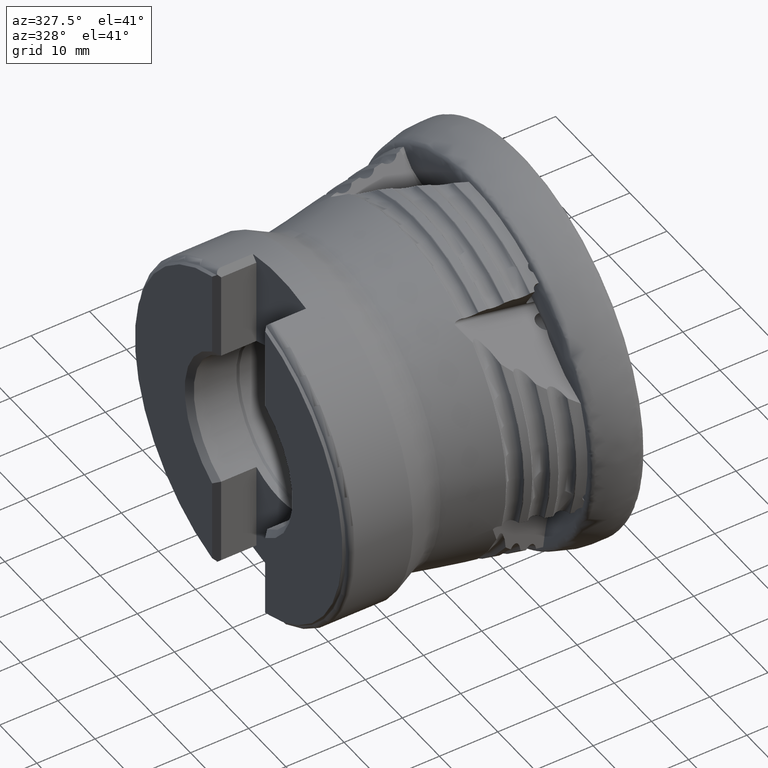
[diagram: clean part render]
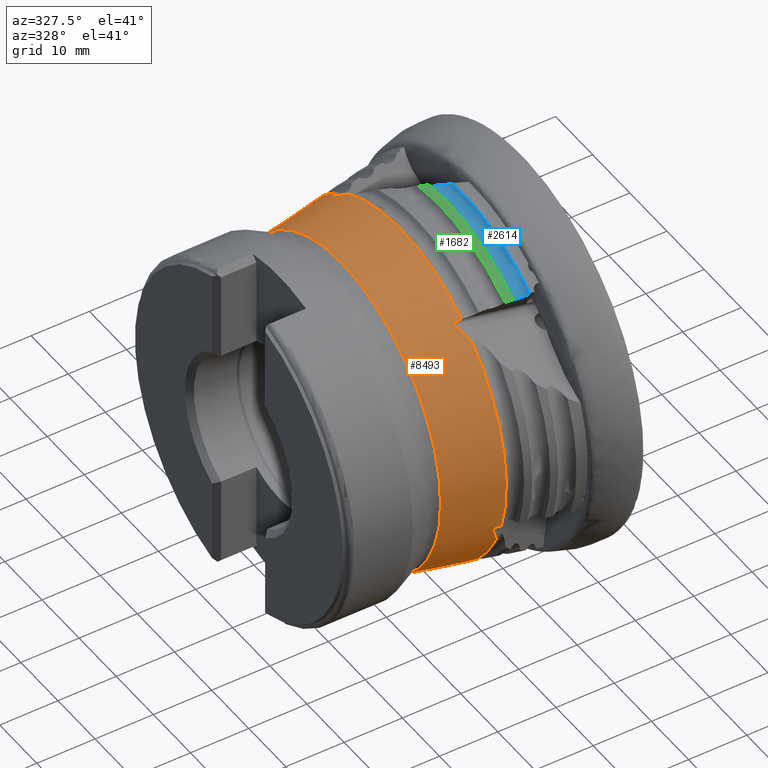
[diagram: same view with three faces highlighted in distinct colors, each labeled with its STEP entity id]
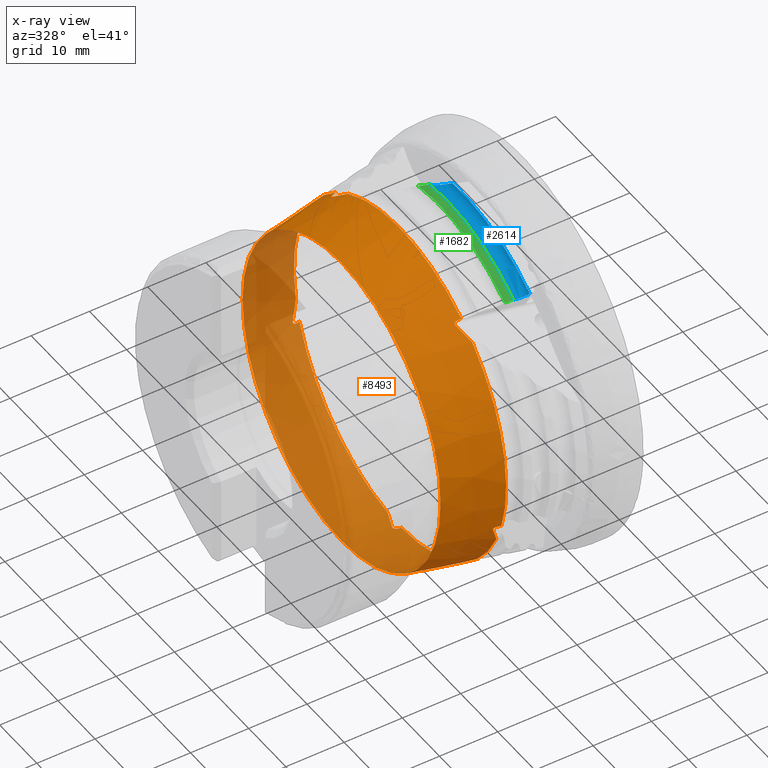
[diagram: x-ray of the same camera — body ghosted, the three highlighted faces saturated]
A machine part, auxiliary view with three faces highlighted in distinct colors.
The next image is the same camera in x-ray (body ghosted, the three faces saturated) — at least one of them is partly hidden behind the body in this view.
Their STEP definitions:

[orange] entity #8493 — the highlighted conical surface has half-angle 10.764 deg.
#26 = CARTESIAN_POINT ( 'NONE',  ( -22.52106883531350300, 27.01563406584075000, -8.624198506143880400 ) ) ;
#29 = CARTESIAN_POINT ( 'NONE',  ( -21.29490047257803900, -16.51632577960109000, 23.33898875940760900 ) ) ;
#186 = CARTESIAN_POINT ( 'NONE',  ( -21.58196087173711000, -0.3763983744179345600, -28.53485405954178600 ) ) ;
#190 = VERTEX_POINT ( 'NONE', #9479 ) ;
#220 = CARTESIAN_POINT ( 'NONE',  ( -22.52106883531354600, -16.78693037832592000, 22.85651443956468000 ) ) ;
#315 = AXIS2_PLACEMENT_3D ( 'NONE', #2992, #9026, #3844 ) ;
#404 = CARTESIAN_POINT ( 'NONE',  ( -22.21712379863611300, 15.70556354944978300, 23.70670515880536700 ) ) ;
#460 = VERTEX_POINT ( 'NONE', #10390 ) ;
#510 = CIRCLE ( 'NONE', #2174, 26.68324782380191000 ) ;
#526 = CARTESIAN_POINT ( 'NONE',  ( -22.36986467890854500, 26.93071918891300200, -8.977453032995550000 ) ) ;
#563 = CARTESIAN_POINT ( 'NONE',  ( -21.58196087173717700, -27.25457238920857300, -8.459778709694591100 ) ) ;
#578 = CARTESIAN_POINT ( 'NONE',  ( -21.29490047257804600, -25.94939627500594900, -12.00525911975147300 ) ) ;
#643 = CARTESIAN_POINT ( 'NONE',  ( -22.53528519868220700, -16.74454485815726900, 22.88429099222464200 ) ) ;
#675 = CARTESIAN_POINT ( 'NONE',  ( -21.58196087173704600, -16.46785371095767300, 23.30642327964784900 ) ) ;
#690 = CARTESIAN_POINT ( 'NONE',  ( -21.39058773380902100, -27.28520824470349400, -8.483803689304734200 ) ) ;
#702 = CARTESIAN_POINT ( 'NONE',  ( -22.27712465673549500, -0.2653058828051061400, -28.40395663185016800 ) ) ;
#756 = CARTESIAN_POINT ( 'NONE',  ( -22.52106883531354600, -16.78693037832592000, 22.85651443956468000 ) ) ;
#757 = VERTEX_POINT ( 'NONE', #8844 ) ;
#763 = CARTESIAN_POINT ( 'NONE',  ( -22.52106883531340700, 16.55039022725048900, 23.02837091890171100 ) ) ;
#771 = CARTESIAN_POINT ( 'NONE',  ( -21.58196087173730500, 27.02194540050817300, -9.175730963120374300 ) ) ;
#851 = B_SPLINE_CURVE_WITH_KNOTS ( 'NONE', 3,
 ( #7075, #1061, #7945, #2768 ),
 .UNSPECIFIED., .F., .F.,
 ( 4, 4 ),
 ( 2.040952858828120500E-007, 0.0002931438823437297600 ),
 .UNSPECIFIED. ) ;
#972 = ORIENTED_EDGE ( 'NONE', *, *, #5707, .T. ) ;
#1061 = CARTESIAN_POINT ( 'NONE',  ( -21.39058773380904600, 17.08754247310688300, 22.90138437355401300 ) ) ;
#1078 = ORIENTED_EDGE ( 'NONE', *, *, #7974, .T. ) ;
#1082 = ORIENTED_EDGE ( 'NONE', *, *, #2402, .F. ) ;
#1100 = CARTESIAN_POINT ( 'NONE',  ( -21.39058773380906000, 27.06085185694226800, -9.174301650377534800 ) ) ;
#1195 = VERTEX_POINT ( 'NONE', #6295 ) ;
#1270 = ORIENTED_EDGE ( 'NONE', *, *, #6126, .T. ) ;
#1271 = CARTESIAN_POINT ( 'NONE',  ( -31.33428734858307500, 0.0000000000000000000, -26.68324782380191000 ) ) ;
#1307 = CIRCLE ( 'NONE', #6146, 28.59191168092246500 ) ;
#1367 = CARTESIAN_POINT ( 'NONE',  ( -22.53528519868207500, -26.93860299319389300, -8.853373678928125700 ) ) ;
#1370 = CARTESIAN_POINT ( 'NONE',  ( -22.08703253607674800, 26.94345460711793200, -9.108227985914043100 ) ) ;
#1384 = EDGE_CURVE ( 'NONE', #5970, #10302, #5975, .T. ) ;
#1427 = CARTESIAN_POINT ( 'NONE',  ( -21.58196087173717700, -27.25457238920857300, -8.459778709694591100 ) ) ;
#1488 = CARTESIAN_POINT ( 'NONE',  ( -22.52106883531354600, -16.78693037832592000, 22.85651443956468000 ) ) ;
#1551 = CARTESIAN_POINT ( 'NONE',  ( -21.98639965629809000, -0.3581821129840552200, -28.45819386156091500 ) ) ;
#1555 =( BOUNDED_CURVE ( )  B_SPLINE_CURVE ( 3, ( #7278, #4719, #7325, #2159 ),
 .UNSPECIFIED., .F., .T. ) 
 B_SPLINE_CURVE_WITH_KNOTS ( ( 4, 4 ),
 ( 3.240110471697121000, 3.308486809234671500 ),
 .UNSPECIFIED. ) 
 CURVE ( )  GEOMETRIC_REPRESENTATION_ITEM ( )  RATIONAL_B_SPLINE_CURVE ( ( 1.000000000000000000, 0.9996104276529794700, 0.9996104276529794700, 1.000000000000000000 ) ) 
 REPRESENTATION_ITEM ( '' )  );
#1591 = CARTESIAN_POINT ( 'NONE',  ( -21.80824172190745400, -18.57665923658933200, 21.63340782445928300 ) ) ;
#1605 = CARTESIAN_POINT ( 'NONE',  ( -22.53516746454423000, 16.63359310097492000, 22.96508876181139100 ) ) ;
#1616 = ORIENTED_EDGE ( 'NONE', *, *, #3468, .F. ) ;
#1654 = CARTESIAN_POINT ( 'NONE',  ( -21.48627453447257500, -16.48401247080880700, 23.31728042652461900 ) ) ;
#1666 = EDGE_CURVE ( 'NONE', #9438, #3931, #2497, .T. ) ;
#1779 = CARTESIAN_POINT ( 'NONE',  ( -21.29490047257805300, 28.05001684078946100, -5.540213786588043200 ) ) ;
#1796 = ORIENTED_EDGE ( 'NONE', *, *, #3147, .T. ) ;
#1824 = ORIENTED_EDGE ( 'NONE', *, *, #3610, .T. ) ;
#1844 = CIRCLE ( 'NONE', #7948, 28.59191168092246500 ) ;
#1920 = VERTEX_POINT ( 'NONE', #29 ) ;
#2006 = VERTEX_POINT ( 'NONE', #6281 ) ;
#2108 = CARTESIAN_POINT ( 'NONE',  ( -21.80824172190735100, 14.83409007830418200, 24.35254348195460800 ) ) ;
#2130 = CARTESIAN_POINT ( 'NONE',  ( -31.33428734858307500, 0.0000000000000000000, 0.0000000000000000000 ) ) ;
#2159 = CARTESIAN_POINT ( 'NONE',  ( -21.29490047257804600, -25.94939627500594900, -12.00525911975147300 ) ) ;
#2165 =( BOUNDED_CURVE ( )  B_SPLINE_CURVE ( 3, ( #756, #6747, #1591, #7620 ),
 .UNSPECIFIED., .F., .T. ) 
 B_SPLINE_CURVE_WITH_KNOTS ( ( 4, 4 ),
 ( 3.240110471697121400, 3.308486809234673800 ),
 .UNSPECIFIED. ) 
 CURVE ( )  GEOMETRIC_REPRESENTATION_ITEM ( )  RATIONAL_B_SPLINE_CURVE ( ( 1.000000000000000000, 0.9996104276529793600, 0.9996104276529793600, 1.000000000000000000 ) ) 
 REPRESENTATION_ITEM ( '' )  );
#2174 = AXIS2_PLACEMENT_3D ( 'NONE', #2130, #8173, #2999 ) ;
#2227 = CARTESIAN_POINT ( 'NONE',  ( -22.53516746454423400, -26.95539998798689400, -8.802166368247821300 ) ) ;
#2229 = CARTESIAN_POINT ( 'NONE',  ( -21.78494550540012400, 26.98354454370501500, -9.168803176217844400 ) ) ;
#2276 = VERTEX_POINT ( 'NONE', #3056 ) ;
#2342 = CARTESIAN_POINT ( 'NONE',  ( -22.53516746454423400, -16.70103436849823800, 22.91608981281311600 ) ) ;
#2395 = CARTESIAN_POINT ( 'NONE',  ( -21.68369087881044900, -0.3835120294908243000, -28.51541788004777400 ) ) ;
#2402 = EDGE_CURVE ( 'NONE', #8558, #2276, #2165, .T. ) ;
#2458 = CARTESIAN_POINT ( 'NONE',  ( -22.47645378547018800, 16.75641244170630600, 22.88944124758243200 ) ) ;
#2470 = CARTESIAN_POINT ( 'NONE',  ( -22.21712379863613800, 1.228383855050918300, -28.41062598741863000 ) ) ;
#2497 =( BOUNDED_CURVE ( )  B_SPLINE_CURVE ( 3, ( #3831, #404, #2108, #9868 ),
 .UNSPECIFIED., .F., .T. ) 
 B_SPLINE_CURVE_WITH_KNOTS ( ( 4, 4 ),
 ( 3.240110471697123200, 3.308486809234672900 ),
 .UNSPECIFIED. ) 
 CURVE ( )  GEOMETRIC_REPRESENTATION_ITEM ( )  RATIONAL_B_SPLINE_CURVE ( ( 1.000000000000000000, 0.9996104276529794700, 0.9996104276529794700, 1.000000000000000000 ) ) 
 REPRESENTATION_ITEM ( '' )  );
#2528 = CARTESIAN_POINT ( 'NONE',  ( -22.52106883531345000, 0.1461898530683803900, -28.35841872142465200 ) ) ;
#2540 = FACE_OUTER_BOUND ( 'NONE', #9739, .T. ) ;
#2553 = CARTESIAN_POINT ( 'NONE',  ( -21.29490047257803900, 0.0000000000000000000, 0.0000000000000000000 ) ) ;
#2682 = DIRECTION ( 'NONE',  ( -1.000000000000000000, 0.0000000000000000000, 0.0000000000000000000 ) ) ;
#2694 = ORIENTED_EDGE ( 'NONE', *, *, #8549, .F. ) ;
#2733 = EDGE_CURVE ( 'NONE', #460, #10302, #7558, .T. ) ;
#2740 = CARTESIAN_POINT ( 'NONE',  ( -21.58196087173711000, -0.3763983744179345600, -28.53485405954178600 ) ) ;
#2768 = CARTESIAN_POINT ( 'NONE',  ( -21.58196087173724800, 17.07687907407574800, 22.86394045270860800 ) ) ;
#2809 = ORIENTED_EDGE ( 'NONE', *, *, #4648, .T. ) ;
#2810 = CARTESIAN_POINT ( 'NONE',  ( -21.48627453447274900, 27.04139978265192200, -9.175016698718272000 ) ) ;
#2862 = DIRECTION ( 'NONE',  ( -1.000000000000000000, 0.0000000000000000000, 0.0000000000000000000 ) ) ;
#2992 = CARTESIAN_POINT ( 'NONE',  ( -21.29490047257803900, 0.0000000000000000000, 0.0000000000000000000 ) ) ;
#2999 = DIRECTION ( 'NONE',  ( 0.0000000000000000000, 0.0000000000000000000, -1.000000000000000000 ) ) ;
#3056 = CARTESIAN_POINT ( 'NONE',  ( -21.29490047257803900, -19.43648435839830300, 20.96951333139156800 ) ) ;
#3090 = CARTESIAN_POINT ( 'NONE',  ( -22.47645378547017700, -27.01029842864013700, -8.668774846476170000 ) ) ;
#3092 = CARTESIAN_POINT ( 'NONE',  ( -21.58196087173730500, 27.02194540050817300, -9.175730963120374300 ) ) ;
#3105 = B_SPLINE_CURVE_WITH_KNOTS ( 'NONE', 3,
 ( #10244, #5069, #1654, #7671 ),
 .UNSPECIFIED., .F., .F.,
 ( 4, 4 ),
 ( 2.040952858830402400E-007, 0.0002931438823435207300 ),
 .UNSPECIFIED. ) ;
#3111 = DIRECTION ( 'NONE',  ( -1.000000000000000000, 0.0000000000000000000, 0.0000000000000000000 ) ) ;
#3147 = EDGE_CURVE ( 'NONE', #1920, #3931, #3849, .T. ) ;
#3178 = EDGE_CURVE ( 'NONE', #190, #3397, #1555, .T. ) ;
#3210 = CARTESIAN_POINT ( 'NONE',  ( -22.47645378547016600, -16.59113604362532600, 23.00952157966382200 ) ) ;
#3230 = CARTESIAN_POINT ( 'NONE',  ( -22.52106883531345000, 0.1461898530683803900, -28.35841872142465200 ) ) ;
#3258 = CARTESIAN_POINT ( 'NONE',  ( -21.29490047257803900, -27.30052269390371600, -8.495815099760497100 ) ) ;
#3330 = CARTESIAN_POINT ( 'NONE',  ( -22.27712465673553100, 16.91006378285334200, 22.82334073739659900 ) ) ;
#3346 = ORIENTED_EDGE ( 'NONE', *, *, #2733, .F. ) ;
#3378 = ORIENTED_EDGE ( 'NONE', *, *, #1666, .F. ) ;
#3397 = VERTEX_POINT ( 'NONE', #578 ) ;
#3405 = VERTEX_POINT ( 'NONE', #1427 ) ;
#3435 = DIRECTION ( 'NONE',  ( 0.0000000000000000000, 0.0000000000000000000, -1.000000000000000000 ) ) ;
#3468 = EDGE_CURVE ( 'NONE', #8282, #3405, #10052, .T. ) ;
#3523 = EDGE_CURVE ( 'NONE', #9438, #10420, #6031, .T. ) ;
#3610 = EDGE_CURVE ( 'NONE', #2006, #7730, #5466, .T. ) ;
#3636 = ORIENTED_EDGE ( 'NONE', *, *, #9310, .F. ) ;
#3644 = ORIENTED_EDGE ( 'NONE', *, *, #3523, .T. ) ;
#3791 = VERTEX_POINT ( 'NONE', #186 ) ;
#3831 = CARTESIAN_POINT ( 'NONE',  ( -22.52106883531340700, 16.55039022725048900, 23.02837091890171100 ) ) ;
#3844 = DIRECTION ( 'NONE',  ( 0.0000000000000000000, 1.776356839400250500E-015, -1.000000000000000000 ) ) ;
#3849 = CIRCLE ( 'NONE', #315, 28.59191168092246500 ) ;
#3877 = ORIENTED_EDGE ( 'NONE', *, *, #9590, .T. ) ;
#3887 = EDGE_CURVE ( 'NONE', #8282, #2276, #1844, .T. ) ;
#3903 = B_SPLINE_CURVE_WITH_KNOTS ( 'NONE', 3,
 ( #1488, #643, #2342, #8386, #3210, #9244, #4073, #10111, #4937, #10987, #5811, #675 ),
 .UNSPECIFIED., .F., .F.,
 ( 4, 2, 2, 2, 2, 4 ),
 ( 1.769077770938648700E-017, 0.0001554534804871248400, 0.0003109069609742319500, 0.0006218139219484569500, 0.0009327208829226819600, 0.001243627843896907200 ),
 .UNSPECIFIED. ) ;
#3915 = CARTESIAN_POINT ( 'NONE',  ( -22.53528519868213900, 26.99767010772194500, -8.671583792956784700 ) ) ;
#3931 = VERTEX_POINT ( 'NONE', #6446 ) ;
#3955 = CARTESIAN_POINT ( 'NONE',  ( -22.27712465673550900, -27.09575206978036700, -8.524984418077776700 ) ) ;
#4073 = CARTESIAN_POINT ( 'NONE',  ( -22.27712465673544500, -16.48078984705972900, 23.13522650791492200 ) ) ;
#4196 = CARTESIAN_POINT ( 'NONE',  ( -21.98639965629817500, 17.01708207519077100, 22.81262829957270100 ) ) ;
#4211 = CARTESIAN_POINT ( 'NONE',  ( -21.29490047257805700, 3.398875472904551400, -28.38917151114770500 ) ) ;
#4240 = VERTEX_POINT ( 'NONE', #1271 ) ;
#4305 = CONICAL_SURFACE ( 'NONE', #6447, 31.10999999999999900, 0.1878754195888589200 ) ;
#4340 = CARTESIAN_POINT ( 'NONE',  ( -22.52106883531350300, 27.01563406584075000, -8.624198506143880400 ) ) ;
#4353 = AXIS2_PLACEMENT_3D ( 'NONE', #7868, #2682, #8727 ) ;
#4501 = EDGE_LOOP ( 'NONE', ( #1270 ) ) ;
#4517 = CARTESIAN_POINT ( 'NONE',  ( -21.29490047257803900, 27.08030163652987500, -9.173585822579282100 ) ) ;
#4556 = CARTESIAN_POINT ( 'NONE',  ( -22.52106883531340700, 16.55039022725048900, 23.02837091890171100 ) ) ;
#4648 = EDGE_CURVE ( 'NONE', #10353, #3791, #9819, .T. ) ;
#4719 = CARTESIAN_POINT ( 'NONE',  ( -22.21712379863615900, -26.64051949053227000, -9.947628720801049000 ) ) ;
#4784 = CARTESIAN_POINT ( 'NONE',  ( -22.53516746454422700, 26.98116025993644800, -8.722884403355532600 ) ) ;
#4815 = CARTESIAN_POINT ( 'NONE',  ( -21.98639965629812900, -27.17603507402135000, -8.453414099865593600 ) ) ;
#4937 = CARTESIAN_POINT ( 'NONE',  ( -21.98639965629803700, -16.43753124222066500, 23.23369662686644300 ) ) ;
#4959 = CARTESIAN_POINT ( 'NONE',  ( -22.50523141035135000, -0.05743504500459274700, -28.36179164256758900 ) ) ;
#4985 = CARTESIAN_POINT ( 'NONE',  ( -21.48627453447266000, -27.26989148089612800, -8.471791560650920900 ) ) ;
#5060 = CARTESIAN_POINT ( 'NONE',  ( -21.68369087881057700, 17.07120984225434100, 22.84403495165049600 ) ) ;
#5069 = CARTESIAN_POINT ( 'NONE',  ( -21.39058773380897400, -16.50016982435488800, 23.32813558265951300 ) ) ;
#5089 = VERTEX_POINT ( 'NONE', #10845 ) ;
#5111 = EDGE_CURVE ( 'NONE', #757, #3397, #1307, .T. ) ;
#5235 = DIRECTION ( 'NONE',  ( 1.000000000000000000, -0.0000000000000000000, -0.0000000000000000000 ) ) ;
#5311 = CARTESIAN_POINT ( 'NONE',  ( -21.29490047257803900, -0.3563251558695125800, -28.58969125319412500 ) ) ;
#5466 = CIRCLE ( 'NONE', #9314, 28.59191168092246500 ) ;
#5486 = B_SPLINE_CURVE_WITH_KNOTS ( 'NONE', 3,
 ( #5311, #10480, #7914, #2740 ),
 .UNSPECIFIED., .F., .F.,
 ( 4, 4 ),
 ( 2.040952858830066300E-007, 0.0002931438823435882700 ),
 .UNSPECIFIED. ) ;
#5630 =( BOUNDED_CURVE ( )  B_SPLINE_CURVE ( 3, ( #4340, #10375, #6930, #1779 ),
 .UNSPECIFIED., .F., .F. ) 
 B_SPLINE_CURVE_WITH_KNOTS ( ( 4, 4 ),
 ( 3.240110471697121900, 3.308486809234675500 ),
 .UNSPECIFIED. ) 
 CURVE ( )  GEOMETRIC_REPRESENTATION_ITEM ( )  RATIONAL_B_SPLINE_CURVE ( ( 1.000000000000000000, 0.9996104276529793600, 0.9996104276529793600, 1.000000000000000000 ) ) 
 REPRESENTATION_ITEM ( '' )  );
#5657 = CARTESIAN_POINT ( 'NONE',  ( -22.47645378547018400, 26.94716846211137800, -8.863068905164151800 ) ) ;
#5696 = ORIENTED_EDGE ( 'NONE', *, *, #3887, .T. ) ;
#5697 = CARTESIAN_POINT ( 'NONE',  ( -21.68369087881050900, -27.23828572435855500, -8.447007111913475100 ) ) ;
#5707 = EDGE_CURVE ( 'NONE', #8558, #1195, #3903, .T. ) ;
#5811 = CARTESIAN_POINT ( 'NONE',  ( -21.68369087881037800, -16.45067434344408500, 23.29488038167320200 ) ) ;
#5838 = CARTESIAN_POINT ( 'NONE',  ( -22.36986467890851300, -0.2160153066506135300, -28.38682152652919300 ) ) ;
#5970 = VERTEX_POINT ( 'NONE', #26 ) ;
#5975 = B_SPLINE_CURVE_WITH_KNOTS ( 'NONE', 3,
 ( #9952, #3915, #4784, #10829, #5657, #526, #6532, #1370, #7389, #2229, #8276, #3092 ),
 .UNSPECIFIED., .F., .F.,
 ( 4, 2, 2, 2, 2, 4 ),
 ( 7.757919228897728500E-018, 0.0001554534804870693300, 0.0003109069609741309000, 0.0006218139219482648300, 0.0009327208829223987700, 0.001243627843896532700 ),
 .UNSPECIFIED. ) ;
#6031 = B_SPLINE_CURVE_WITH_KNOTS ( 'NONE', 3,
 ( #763, #6757, #1605, #7629, #2458, #8509, #3330, #9359, #4196, #10235, #5060, #11111 ),
 .UNSPECIFIED., .F., .F.,
 ( 4, 2, 2, 2, 2, 4 ),
 ( 4.456585301718499700E-017, 0.0001554534804870940500, 0.0003109069609741435300, 0.0006218139219482455300, 0.0009327208829223474900, 0.001243627843896449700 ),
 .UNSPECIFIED. ) ;
#6107 = DIRECTION ( 'NONE',  ( 0.0000000000000000000, 0.0000000000000000000, -1.000000000000000000 ) ) ;
#6126 = EDGE_CURVE ( 'NONE', #4240, #4240, #510, .T. ) ;
#6146 = AXIS2_PLACEMENT_3D ( 'NONE', #8295, #3111, #9143 ) ;
#6281 = CARTESIAN_POINT ( 'NONE',  ( -21.29490047257803900, 17.09287199284423100, 22.92010341612601500 ) ) ;
#6295 = CARTESIAN_POINT ( 'NONE',  ( -21.58196087173704600, -16.46785371095767300, 23.30642327964784900 ) ) ;
#6446 = CARTESIAN_POINT ( 'NONE',  ( -21.29490047257803900, 13.93698831971025600, 24.96513108609542900 ) ) ;
#6447 = AXIS2_PLACEMENT_3D ( 'NONE', #7841, #5235, #6107 ) ;
#6532 = CARTESIAN_POINT ( 'NONE',  ( -22.27712465673555200, 26.93178401679164600, -9.029626195383814400 ) ) ;
#6699 = CARTESIAN_POINT ( 'NONE',  ( -22.08703253607664200, -0.3364542171361359900, -28.43934531189113100 ) ) ;
#6747 = CARTESIAN_POINT ( 'NONE',  ( -22.21712379863624400, -17.69313037815415900, 22.26265333049896700 ) ) ;
#6757 = CARTESIAN_POINT ( 'NONE',  ( -22.53528519868206100, 16.58990514470550100, 22.99664332056584500 ) ) ;
#6858 = FACE_BOUND ( 'NONE', #4501, .T. ) ;
#6930 = CARTESIAN_POINT ( 'NONE',  ( -21.80824172190736800, 27.74463109715883000, -6.582708240101661400 ) ) ;
#6959 = B_SPLINE_CURVE_WITH_KNOTS ( 'NONE', 3,
 ( #7386, #1367, #2227, #8274, #3090, #9127, #3955, #9997, #4815, #10865, #5697, #563 ),
 .UNSPECIFIED., .F., .F.,
 ( 4, 2, 2, 2, 2, 4 ),
 ( 1.430489624538199200E-017, 0.0001554534804870860200, 0.0003109069609741577300, 0.0006218139219482975800, 0.0009327208829224375800, 0.001243627843896577600 ),
 .UNSPECIFIED. ) ;
#6977 = CARTESIAN_POINT ( 'NONE',  ( -21.58196087173724800, 17.07687907407574800, 22.86394045270860800 ) ) ;
#7075 = CARTESIAN_POINT ( 'NONE',  ( -21.29490047257803900, 17.09287199284423100, 22.92010341612601500 ) ) ;
#7278 = CARTESIAN_POINT ( 'NONE',  ( -22.52106883531345000, -26.92528376783397400, -8.902268130898106000 ) ) ;
#7325 = CARTESIAN_POINT ( 'NONE',  ( -21.80824172190739300, -26.31509688394096700, -10.98236215395093400 ) ) ;
#7386 = CARTESIAN_POINT ( 'NONE',  ( -22.52106883531345000, -26.92528376783397400, -8.902268130898106000 ) ) ;
#7389 = CARTESIAN_POINT ( 'NONE',  ( -21.98639965629821100, 26.95466635403506600, -9.134716965012875900 ) ) ;
#7450 = ORIENTED_EDGE ( 'NONE', *, *, #7820, .F. ) ;
#7533 = CARTESIAN_POINT ( 'NONE',  ( -21.29490047257805300, 28.05001684078946100, -5.540213786588043200 ) ) ;
#7558 = B_SPLINE_CURVE_WITH_KNOTS ( 'NONE', 3,
 ( #4517, #1100, #2810, #8851 ),
 .UNSPECIFIED., .F., .F.,
 ( 4, 4 ),
 ( 2.040952858831071800E-007, 0.0002931438823437866300 ),
 .UNSPECIFIED. ) ;
#7568 = CARTESIAN_POINT ( 'NONE',  ( -21.78494550539997100, -0.3816761748915362100, -28.49619187056154200 ) ) ;
#7620 = CARTESIAN_POINT ( 'NONE',  ( -21.29490047257803900, -19.43648435839830300, 20.96951333139156800 ) ) ;
#7629 = CARTESIAN_POINT ( 'NONE',  ( -22.50523141035135000, 16.71710878357441700, 22.91141195734018200 ) ) ;
#7671 = CARTESIAN_POINT ( 'NONE',  ( -21.58196087173704600, -16.46785371095767300, 23.30642327964784900 ) ) ;
#7730 = VERTEX_POINT ( 'NONE', #7533 ) ;
#7820 = EDGE_CURVE ( 'Kante81', #10353, #5089, #8285, .T. ) ;
#7841 = CARTESIAN_POINT ( 'NONE',  ( -8.049999999999993600, 0.0000000000000000000, 0.0000000000000000000 ) ) ;
#7868 = CARTESIAN_POINT ( 'NONE',  ( -21.29490047257803900, 0.0000000000000000000, 0.0000000000000000000 ) ) ;
#7914 = CARTESIAN_POINT ( 'NONE',  ( -21.48627453447261700, -0.3697073339064782500, -28.55313555661135500 ) ) ;
#7945 = CARTESIAN_POINT ( 'NONE',  ( -21.48627453447271000, 17.08221150295925000, 22.88266338945564000 ) ) ;
#7948 = AXIS2_PLACEMENT_3D ( 'NONE', #8035, #2862, #8901 ) ;
#7974 = EDGE_CURVE ( 'Kante78', #460, #5089, #8765, .T. ) ;
#8035 = CARTESIAN_POINT ( 'NONE',  ( -21.29490047257803900, 0.0000000000000000000, 0.0000000000000000000 ) ) ;
#8173 = DIRECTION ( 'NONE',  ( 1.000000000000000000, -0.0000000000000000000, -0.0000000000000000000 ) ) ;
#8274 = CARTESIAN_POINT ( 'NONE',  ( -22.50523141035135700, -26.99141516044835100, -8.709651634659739000 ) ) ;
#8276 = CARTESIAN_POINT ( 'NONE',  ( -21.68369087881061900, 27.00126225503886300, -9.176490341362734800 ) ) ;
#8282 = VERTEX_POINT ( 'NONE', #8322 ) ;
#8285 =( BOUNDED_CURVE ( )  B_SPLINE_CURVE ( 3, ( #8520, #2470, #9373, #4211 ),
 .UNSPECIFIED., .F., .F. ) 
 B_SPLINE_CURVE_WITH_KNOTS ( ( 4, 4 ),
 ( 3.240110471697121000, 3.308486809234676000 ),
 .UNSPECIFIED. ) 
 CURVE ( )  GEOMETRIC_REPRESENTATION_ITEM ( )  RATIONAL_B_SPLINE_CURVE ( ( 1.000000000000000000, 0.9996104276529793600, 0.9996104276529793600, 1.000000000000000000 ) ) 
 REPRESENTATION_ITEM ( '' )  );
#8295 = CARTESIAN_POINT ( 'NONE',  ( -21.29490047257803900, 0.0000000000000000000, 0.0000000000000000000 ) ) ;
#8322 = CARTESIAN_POINT ( 'NONE',  ( -21.29490047257803900, -27.30052269390371600, -8.495815099760497100 ) ) ;
#8386 = CARTESIAN_POINT ( 'NONE',  ( -22.50523141035133200, -16.62417692861191300, 22.97893090217687700 ) ) ;
#8410 = CARTESIAN_POINT ( 'NONE',  ( -22.53528519868207900, 0.09557259892352616700, -28.35597684090582100 ) ) ;
#8449 = CARTESIAN_POINT ( 'NONE',  ( -21.58196087173711000, -0.3763983744179345600, -28.53485405954178600 ) ) ;
#8493 = ADVANCED_FACE ( 'NONE', ( #2540, #6858 ), #4305, .T. ) ;
#8509 = CARTESIAN_POINT ( 'NONE',  ( -22.36986467890854200, 16.86011510687768200, 22.83845041973215100 ) ) ;
#8520 = CARTESIAN_POINT ( 'NONE',  ( -22.52106883531345000, 0.1461898530683803900, -28.35841872142465200 ) ) ;
#8549 = EDGE_CURVE ( 'NONE', #757, #3791, #5486, .T. ) ;
#8558 = VERTEX_POINT ( 'NONE', #220 ) ;
#8605 = DIRECTION ( 'NONE',  ( -1.000000000000000000, 0.0000000000000000000, 0.0000000000000000000 ) ) ;
#8632 = ORIENTED_EDGE ( 'NONE', *, *, #9959, .F. ) ;
#8727 = DIRECTION ( 'NONE',  ( 0.0000000000000000000, 5.329070518200751400E-015, -1.000000000000000000 ) ) ;
#8734 = ORIENTED_EDGE ( 'NONE', *, *, #10873, .F. ) ;
#8765 = CIRCLE ( 'NONE', #4353, 28.59191168092246500 ) ;
#8844 = CARTESIAN_POINT ( 'NONE',  ( -21.29490047257803900, -0.3563251558695125800, -28.58969125319412500 ) ) ;
#8851 = CARTESIAN_POINT ( 'NONE',  ( -21.58196087173730500, 27.02194540050817300, -9.175730963120374300 ) ) ;
#8901 = DIRECTION ( 'NONE',  ( 0.0000000000000000000, 0.0000000000000000000, -1.000000000000000000 ) ) ;
#9026 = DIRECTION ( 'NONE',  ( -1.000000000000000000, 0.0000000000000000000, 0.0000000000000000000 ) ) ;
#9086 = ORIENTED_EDGE ( 'NONE', *, *, #3178, .F. ) ;
#9127 = CARTESIAN_POINT ( 'NONE',  ( -22.36986467890852400, -27.06422399051317400, -8.566567502976868200 ) ) ;
#9143 = DIRECTION ( 'NONE',  ( 0.0000000000000000000, 0.0000000000000000000, -1.000000000000000000 ) ) ;
#9244 = CARTESIAN_POINT ( 'NONE',  ( -22.36986467890847800, -16.51059499862709500, 23.09239164276924700 ) ) ;
#9310 = EDGE_CURVE ( 'NONE', #5970, #7730, #5630, .T. ) ;
#9314 = AXIS2_PLACEMENT_3D ( 'NONE', #2553, #8605, #3435 ) ;
#9359 = CARTESIAN_POINT ( 'NONE',  ( -22.08703253607671600, 16.98842493867479700, 22.81015083931328400 ) ) ;
#9373 = CARTESIAN_POINT ( 'NONE',  ( -21.80824172190732600, 2.313034945067148600, -28.42088091236147600 ) ) ;
#9438 = VERTEX_POINT ( 'NONE', #4556 ) ;
#9479 = CARTESIAN_POINT ( 'NONE',  ( -22.52106883531345000, -26.92528376783397400, -8.902268130898106000 ) ) ;
#9590 = EDGE_CURVE ( 'NONE', #190, #3405, #6959, .T. ) ;
#9739 = EDGE_LOOP ( 'NONE', ( #9086, #3877, #1616, #5696, #1082, #972, #8734, #1796, #3378, #3644, #8632, #1824, #3636, #10842, #3346, #1078, #7450, #2809, #2694, #10490 ) ) ;
#9819 = B_SPLINE_CURVE_WITH_KNOTS ( 'NONE', 3,
 ( #3230, #8410, #10138, #4959, #11008, #5838, #702, #6699, #1551, #7568, #2395, #8449 ),
 .UNSPECIFIED., .F., .F.,
 ( 4, 2, 2, 2, 2, 4 ),
 ( 1.715749937958310800E-017, 0.0001554534804870992200, 0.0003109069609741813100, 0.0006218139219483384500, 0.0009327208829224955900, 0.001243627843896652800 ),
 .UNSPECIFIED. ) ;
#9868 = CARTESIAN_POINT ( 'NONE',  ( -21.29490047257803900, 13.93698831971025600, 24.96513108609542900 ) ) ;
#9952 = CARTESIAN_POINT ( 'NONE',  ( -22.52106883531350300, 27.01563406584075000, -8.624198506143880400 ) ) ;
#9959 = EDGE_CURVE ( 'NONE', #2006, #10420, #851, .T. ) ;
#9997 = CARTESIAN_POINT ( 'NONE',  ( -22.08703253607668400, -27.15139474896616900, -8.468254034629861600 ) ) ;
#10052 = B_SPLINE_CURVE_WITH_KNOTS ( 'NONE', 3,
 ( #3258, #690, #4985, #11033 ),
 .UNSPECIFIED., .F., .F.,
 ( 4, 4 ),
 ( 2.040952858827528300E-007, 0.0002931438823436557600 ),
 .UNSPECIFIED. ) ;
#10111 = CARTESIAN_POINT ( 'NONE',  ( -22.08703253607659500, -16.44403057969063700, 23.20567649312152300 ) ) ;
#10138 = CARTESIAN_POINT ( 'NONE',  ( -22.53516746454424100, 0.04168099557360242800, -28.35612780302141900 ) ) ;
#10235 = CARTESIAN_POINT ( 'NONE',  ( -21.78494550540008500, 17.05842383984786900, 22.82955987150094000 ) ) ;
#10244 = CARTESIAN_POINT ( 'NONE',  ( -21.29490047257803900, -16.51632577960109000, 23.33898875940760900 ) ) ;
#10302 = VERTEX_POINT ( 'NONE', #771 ) ;
#10353 = VERTEX_POINT ( 'NONE', #2528 ) ;
#10375 = CARTESIAN_POINT ( 'NONE',  ( -22.21712379863619800, 27.39970246418551300, -7.611103781084848300 ) ) ;
#10390 = CARTESIAN_POINT ( 'NONE',  ( -21.29490047257803900, 27.08030163652987500, -9.173585822579282100 ) ) ;
#10420 = VERTEX_POINT ( 'NONE', #6977 ) ;
#10480 = CARTESIAN_POINT ( 'NONE',  ( -21.39058773380899900, -0.3630162609909983200, -28.57141461653154500 ) ) ;
#10490 = ORIENTED_EDGE ( 'NONE', *, *, #5111, .T. ) ;
#10829 = CARTESIAN_POINT ( 'NONE',  ( -22.50523141035134600, 26.95591835049025800, -8.818899582289965600 ) ) ;
#10842 = ORIENTED_EDGE ( 'NONE', *, *, #1384, .T. ) ;
#10845 = CARTESIAN_POINT ( 'NONE',  ( -21.29490047257805700, 3.398875472904551400, -28.38917151114770500 ) ) ;
#10865 = CARTESIAN_POINT ( 'NONE',  ( -21.78494550540002500, -27.21943339248393600, -8.442811949727843800 ) ) ;
#10873 = EDGE_CURVE ( 'NONE', #1920, #1195, #3105, .T. ) ;
#10987 = CARTESIAN_POINT ( 'NONE',  ( -21.78494550539991400, -16.44085881617765900, 23.27824712500601100 ) ) ;
#11008 = CARTESIAN_POINT ( 'NONE',  ( -22.47645378547018100, -0.1021464315523975500, -28.36711907560615500 ) ) ;
#11033 = CARTESIAN_POINT ( 'NONE',  ( -21.58196087173717700, -27.25457238920857300, -8.459778709694591100 ) ) ;
#11111 = CARTESIAN_POINT ( 'NONE',  ( -21.58196087173724800, 17.07687907407574800, 22.86394045270860800 ) ) ;

[blue] entity #2614 — the highlighted toroidal blend (fillet) surface has major radius 31.113 mm and minor (blend) radius 1.5 mm.
#346 = CARTESIAN_POINT ( 'NONE',  ( -11.53393516384896600, -17.71967472628242000, 23.83402765560823500 ) ) ;
#432 = CARTESIAN_POINT ( 'NONE',  ( -11.31189360353814200, 3.774511778790113200, 29.54897496574179900 ) ) ;
#523 = AXIS2_PLACEMENT_3D ( 'NONE', #5799, #665, #6664 ) ;
#537 = AXIS2_PLACEMENT_3D ( 'NONE', #3497, #2621, #4371 ) ;
#665 = DIRECTION ( 'NONE',  ( -1.000000000000000000, 0.0000000000000000000, 0.0000000000000000000 ) ) ;
#718 = VERTEX_POINT ( 'NONE', #5985 ) ;
#988 = ORIENTED_EDGE ( 'NONE', *, *, #11136, .T. ) ;
#1157 = CARTESIAN_POINT ( 'NONE',  ( -13.11548180697854900, -17.84114595049316800, 24.18936967651366000 ) ) ;
#1189 = CARTESIAN_POINT ( 'NONE',  ( -11.20683513765286900, -17.83625978570295700, 23.95557924620063500 ) ) ;
#1254 = VERTEX_POINT ( 'NONE', #3748 ) ;
#1282 = CARTESIAN_POINT ( 'NONE',  ( -11.74125850050996300, 4.226357520468476500, 29.33697132517549000 ) ) ;
#2042 = CARTESIAN_POINT ( 'NONE',  ( -10.76876941610830900, -18.11261368179576400, 24.28383256374976900 ) ) ;
#2077 = CIRCLE ( 'NONE', #523, 30.52180999640530200 ) ;
#2122 = EDGE_CURVE ( 'NONE', #718, #5845, #8335, .T. ) ;
#2132 = CARTESIAN_POINT ( 'NONE',  ( -12.13097784390624400, 4.521193335855002700, 29.26055432976697500 ) ) ;
#2268 = DIRECTION ( 'NONE',  ( 1.000000000000000000, -0.0000000000000000000, -0.0000000000000000000 ) ) ;
#2299 = EDGE_CURVE ( 'NONE', #5845, #2471, #5080, .T. ) ;
#2471 = VERTEX_POINT ( 'NONE', #8113 ) ;
#2614 = ADVANCED_FACE ( 'NONE', ( #5478 ), #3197, .F. ) ;
#2621 = DIRECTION ( 'NONE',  ( 1.000000000000000000, -0.0000000000000000000, -0.0000000000000000000 ) ) ;
#2872 = CARTESIAN_POINT ( 'NONE',  ( -12.72464631008133500, -17.69300144015428700, 23.93896988134044100 ) ) ;
#3001 = CARTESIAN_POINT ( 'NONE',  ( -12.58637561908745000, 4.711545142331272200, 29.32639726268854800 ) ) ;
#3197 = TOROIDAL_SURFACE ( 'NONE', #537, 31.11296365731391900, 1.500000000000002400 ) ;
#3497 = CARTESIAN_POINT ( 'NONE',  ( -12.04999999999999400, 0.0000000000000000000, 0.0000000000000000000 ) ) ;
#3538 = ORIENTED_EDGE ( 'NONE', *, *, #2299, .T. ) ;
#3715 = CARTESIAN_POINT ( 'NONE',  ( -12.37917366390561800, -17.63999489530340300, 23.82491292585074300 ) ) ;
#3748 = CARTESIAN_POINT ( 'NONE',  ( -10.67140022153120800, -18.25155035264601400, 24.46347880374917900 ) ) ;
#3814 = CARTESIAN_POINT ( 'NONE',  ( -10.67140022153121500, 2.554399545969726400, 30.41473209509179300 ) ) ;
#3856 = CARTESIAN_POINT ( 'NONE',  ( -13.01048280728750900, 4.697054778919564000, 29.58068106606708300 ) ) ;
#4290 = CARTESIAN_POINT ( 'NONE',  ( -13.11548180697879200, 4.640700040093463500, 29.69673378187795600 ) ) ;
#4371 = DIRECTION ( 'NONE',  ( 0.0000000000000000000, 0.0000000000000000000, -1.000000000000000000 ) ) ;
#4603 = CARTESIAN_POINT ( 'NONE',  ( -12.01339178152367500, -17.63935219493924200, 23.78051249845526300 ) ) ;
#5080 = CIRCLE ( 'NONE', #9024, 30.05714713963799400 ) ;
#5471 = CARTESIAN_POINT ( 'NONE',  ( -11.65123198441018800, -17.69102827012659100, 23.80855359499285800 ) ) ;
#5478 = FACE_OUTER_BOUND ( 'NONE', #10800, .T. ) ;
#5564 = CARTESIAN_POINT ( 'NONE',  ( -11.13953486906572900, 3.530791259595084800, 29.69680707576610600 ) ) ;
#5799 = CARTESIAN_POINT ( 'NONE',  ( -10.67140022153153800, 0.0000000000000000000, 0.0000000000000000000 ) ) ;
#5845 = VERTEX_POINT ( 'NONE', #4290 ) ;
#5985 = CARTESIAN_POINT ( 'NONE',  ( -10.67140022153121500, 2.554399545969726400, 30.41473209509179300 ) ) ;
#6341 = CARTESIAN_POINT ( 'NONE',  ( -11.31285339581931600, -17.79183067935992600, 23.90704045900964700 ) ) ;
#6432 = CARTESIAN_POINT ( 'NONE',  ( -11.62594321146461100, 4.115625241428871200, 29.38322221734922100 ) ) ;
#6664 = DIRECTION ( 'NONE',  ( 0.0000000000000000000, 0.0000000000000000000, 1.000000000000000000 ) ) ;
#7200 = CARTESIAN_POINT ( 'NONE',  ( -10.92163875247770300, -17.98665061921410300, 24.12864562668374500 ) ) ;
#7289 = CARTESIAN_POINT ( 'NONE',  ( -11.99202656783640600, 4.427788419089153200, 29.27601034735495800 ) ) ;
#7432 = CARTESIAN_POINT ( 'NONE',  ( -13.11548180697835900, 0.0000000000000000000, 0.0000000000000000000 ) ) ;
#7469 = ORIENTED_EDGE ( 'NONE', *, *, #2122, .T. ) ;
#8046 = CARTESIAN_POINT ( 'NONE',  ( -12.93298965242997400, -17.75568229712381600, 24.05002857833194300 ) ) ;
#8084 = CARTESIAN_POINT ( 'NONE',  ( -10.67140022153120800, -18.25155035264601400, 24.46347880374917900 ) ) ;
#8113 = CARTESIAN_POINT ( 'NONE',  ( -13.11548180697854900, -17.84114595049316800, 24.18936967651366000 ) ) ;
#8175 = CARTESIAN_POINT ( 'NONE',  ( -12.42643554555382200, 4.663474459980137400, 29.28437216273319200 ) ) ;
#8318 = DIRECTION ( 'NONE',  ( 0.0000000000000000000, 0.0000000000000000000, -1.000000000000000000 ) ) ;
#8335 = B_SPLINE_CURVE_WITH_KNOTS ( 'NONE', 3,
 ( #3814, #8990, #10732, #5564, #432, #6432, #1282, #7289, #2132, #8175, #3001, #9036, #3856, #9895 ),
 .UNSPECIFIED., .F., .F.,
 ( 4, 2, 2, 2, 2, 2, 4 ),
 ( 8.297288463850082400E-007, 0.0009747589767417430900, 0.001948688224637101300, 0.002435652848584780500, 0.002922617472532459500, 0.003409582096480138500, 0.003896546720427817500 ),
 .UNSPECIFIED. ) ;
#8908 = CARTESIAN_POINT ( 'NONE',  ( -12.61127066933181800, -17.66935289777876200, 23.89293254086936700 ) ) ;
#8990 = CARTESIAN_POINT ( 'NONE',  ( -10.74968092310282400, 2.801006175625691000, 30.21082349435099000 ) ) ;
#9024 = AXIS2_PLACEMENT_3D ( 'NONE', #7432, #2268, #8318 ) ;
#9036 = CARTESIAN_POINT ( 'NONE',  ( -12.88010140390187400, 4.727865354939484500, 29.47598665311483000 ) ) ;
#9768 = CARTESIAN_POINT ( 'NONE',  ( -12.25749797125213000, -17.63382577196499300, 23.80194651278273100 ) ) ;
#9895 = CARTESIAN_POINT ( 'NONE',  ( -13.11548180697879200, 4.640700040093463500, 29.69673378187795600 ) ) ;
#9940 = B_SPLINE_CURVE_WITH_KNOTS ( 'NONE', 3,
 ( #1157, #10607, #8046, #2872, #8908, #3715, #9768, #4603, #10644, #5471, #346, #6341, #1189, #7200, #2042, #8084 ),
 .UNSPECIFIED., .F., .F.,
 ( 4, 2, 2, 2, 2, 2, 2, 4 ),
 ( 2.805442781496588700E-007, 0.0003656593917215156900, 0.0007310382391648817400, 0.001096417086608247800, 0.001461795934051613900, 0.001827174781494979800, 0.002192553628938345700, 0.002923311323825081800 ),
 .UNSPECIFIED. ) ;
#10607 = CARTESIAN_POINT ( 'NONE',  ( -13.02864874054791900, -17.79452491266898700, 24.11487108841344100 ) ) ;
#10644 = CARTESIAN_POINT ( 'NONE',  ( -11.89213599110334000, -17.65076456514373100, 23.78179488957481900 ) ) ;
#10732 = CARTESIAN_POINT ( 'NONE',  ( -10.85941377209584300, 3.045576727498069400, 30.02674028187652400 ) ) ;
#10753 = EDGE_CURVE ( 'NONE', #1254, #718, #2077, .T. ) ;
#10800 = EDGE_LOOP ( 'NONE', ( #3538, #988, #11054, #7469 ) ) ;
#11054 = ORIENTED_EDGE ( 'NONE', *, *, #10753, .T. ) ;
#11136 = EDGE_CURVE ( 'NONE', #2471, #1254, #9940, .T. ) ;

[green] entity #1682 — the highlighted conical surface has half-angle 10.764 deg.
#123 = CARTESIAN_POINT ( 'NONE',  ( -14.52494134240438400, -17.65701753642923000, 24.10361726259590400 ) ) ;
#203 = DIRECTION ( 'NONE',  ( 1.000000000000000000, -0.0000000000000000000, -0.0000000000000000000 ) ) ;
#271 =( BOUNDED_CURVE ( )  B_SPLINE_CURVE ( 3, ( #2100, #10740, #1288, #7297 ),
 .UNSPECIFIED., .F., .F. ) 
 B_SPLINE_CURVE_WITH_KNOTS ( ( 4, 4 ),
 ( 3.500837029338543800, 3.525819292111888700 ),
 .UNSPECIFIED. ) 
 CURVE ( )  GEOMETRIC_REPRESENTATION_ITEM ( )  RATIONAL_B_SPLINE_CURVE ( ( 1.000000000000000000, 0.9999479912218026700, 0.9999479912218026700, 1.000000000000000000 ) ) 
 REPRESENTATION_ITEM ( '' )  );
#446 = DIRECTION ( 'NONE',  ( 1.000000000000000000, -0.0000000000000000000, -0.0000000000000000000 ) ) ;
#580 = VERTEX_POINT ( 'NONE', #5602 ) ;
#882 = EDGE_CURVE ( 'Kante58', #2531, #10418, #5786, .T. ) ;
#1288 = CARTESIAN_POINT ( 'NONE',  ( -13.71804059200996300, 5.071565494717308600, 29.60372998672515300 ) ) ;
#1682 = ADVANCED_FACE ( 'NONE', ( #8601 ), #10621, .T. ) ;
#2100 = CARTESIAN_POINT ( 'NONE',  ( -14.52494134240435700, 5.819958829411247000, 29.30670081478704600 ) ) ;
#2163 = EDGE_CURVE ( 'Kante65', #580, #10418, #7493, .T. ) ;
#2531 = VERTEX_POINT ( 'NONE', #9208 ) ;
#2791 = DIRECTION ( 'NONE',  ( -1.000000000000000000, 0.0000000000000000000, 0.0000000000000000000 ) ) ;
#2902 = CARTESIAN_POINT ( 'NONE',  ( -13.70492134399183800, -17.79488843158830100, 24.19582528037635400 ) ) ;
#3024 = EDGE_CURVE ( 'NONE', #580, #7590, #4669, .T. ) ;
#3655 = ORIENTED_EDGE ( 'NONE', *, *, #3024, .T. ) ;
#3775 = CARTESIAN_POINT ( 'NONE',  ( -13.29490047257803000, 4.693710788075603300, 29.74479702535655400 ) ) ;
#4593 = CARTESIAN_POINT ( 'NONE',  ( -13.29490047257803000, -17.86379064176441400, 24.24188224847588200 ) ) ;
#4636 = CARTESIAN_POINT ( 'NONE',  ( -14.11493502724633200, -17.72596423483044600, 24.14973719519236200 ) ) ;
#4669 = CIRCLE ( 'NONE', #9176, 30.11285225683146600 ) ;
#5331 = CARTESIAN_POINT ( 'NONE',  ( -14.52494134240438400, 0.0000000000000000000, 0.0000000000000000000 ) ) ;
#5530 = DIRECTION ( 'NONE',  ( 0.0000000000000000000, 0.0000000000000000000, -1.000000000000000000 ) ) ;
#5602 = CARTESIAN_POINT ( 'NONE',  ( -13.29490047257803000, -17.86379064176441400, 24.24188224847588200 ) ) ;
#5786 = CIRCLE ( 'NONE', #10645, 29.87899987321330600 ) ;
#6200 = DIRECTION ( 'NONE',  ( 0.0000000000000000000, 0.0000000000000000000, -1.000000000000000000 ) ) ;
#6441 = CARTESIAN_POINT ( 'NONE',  ( -8.049999999999993600, 0.0000000000000000000, 0.0000000000000000000 ) ) ;
#6714 = ORIENTED_EDGE ( 'NONE', *, *, #7614, .F. ) ;
#7297 = CARTESIAN_POINT ( 'NONE',  ( -13.29490047257803000, 4.693710788075603300, 29.74479702535655400 ) ) ;
#7493 = B_SPLINE_CURVE_WITH_KNOTS ( 'NONE', 3,
 ( #4593, #2902, #4636, #10676 ),
 .UNSPECIFIED., .F., .F.,
 ( 4, 4 ),
 ( 2.040447963125856800E-007, 0.001255143431720444800 ),
 .UNSPECIFIED. ) ;
#7590 = VERTEX_POINT ( 'NONE', #3775 ) ;
#7614 = EDGE_CURVE ( 'NONE', #2531, #7590, #271, .T. ) ;
#7972 = CARTESIAN_POINT ( 'NONE',  ( -13.29490047257803000, 0.0000000000000000000, 0.0000000000000000000 ) ) ;
#8601 = FACE_OUTER_BOUND ( 'NONE', #10972, .T. ) ;
#8838 = DIRECTION ( 'NONE',  ( 0.0000000000000000000, 1.776356839400250500E-015, -1.000000000000000000 ) ) ;
#8868 = AXIS2_PLACEMENT_3D ( 'NONE', #6441, #446, #5530 ) ;
#9176 = AXIS2_PLACEMENT_3D ( 'NONE', #7972, #2791, #8838 ) ;
#9208 = CARTESIAN_POINT ( 'NONE',  ( -14.52494134240435700, 5.819958829411247000, 29.30670081478704600 ) ) ;
#9306 = ORIENTED_EDGE ( 'NONE', *, *, #882, .T. ) ;
#10008 = ORIENTED_EDGE ( 'NONE', *, *, #2163, .F. ) ;
#10418 = VERTEX_POINT ( 'NONE', #123 ) ;
#10621 = CONICAL_SURFACE ( 'NONE', #8868, 31.10999999999999900, 0.1878754195888589200 ) ;
#10645 = AXIS2_PLACEMENT_3D ( 'NONE', #5331, #203, #6200 ) ;
#10676 = CARTESIAN_POINT ( 'NONE',  ( -14.52494134240438400, -17.65701753642923000, 24.10361726259590400 ) ) ;
#10740 = CARTESIAN_POINT ( 'NONE',  ( -14.12807554070212400, 5.447001034439562500, 29.45769032119072900 ) ) ;
#10972 = EDGE_LOOP ( 'NONE', ( #10008, #3655, #6714, #9306 ) ) ;